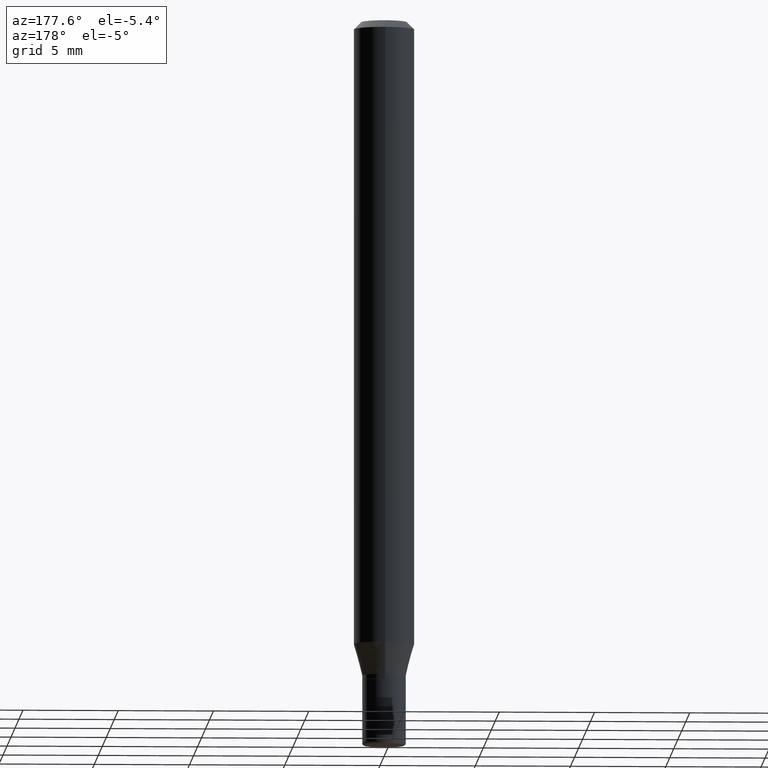
[diagram: clean part render]
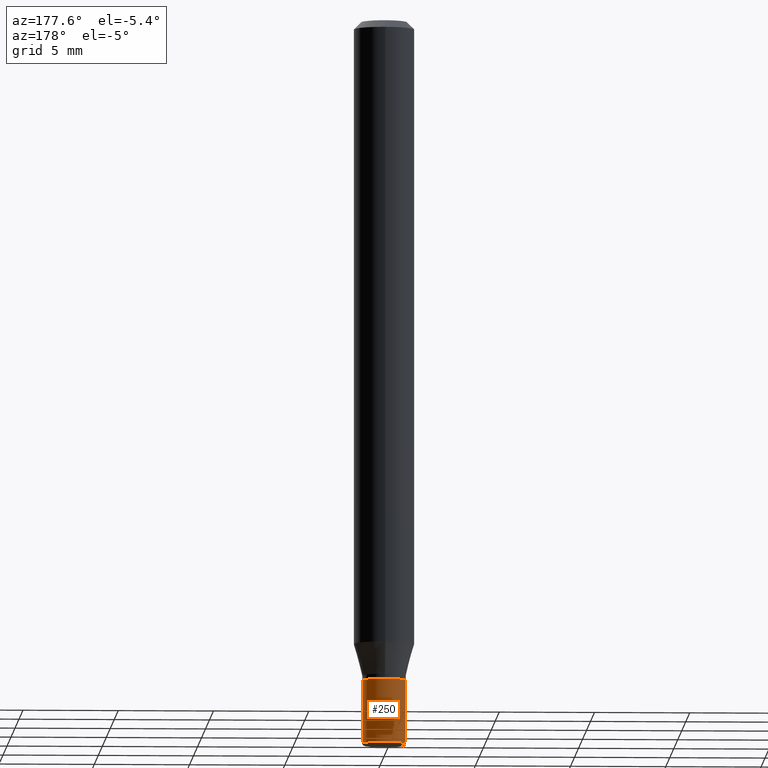
[diagram: same view with one face highlighted and labeled with its STEP entity id]
A machine part, auxiliary view. The second image highlights one B-rep face of the part: STEP entity #250.
In plain terms, the highlighted cylindrical surface (edge-blend (fillet) strip) has radius 1.143 mm, axis along (-0, 0, 1).
Its self-contained STEP definition (entity closure, byte-faithful):
#4 = CARTESIAN_POINT ( 'NONE',  ( 0.000000000000000000, 0.000000000000000000, 0.000000000000000000 ) ) ;
#11 = CARTESIAN_POINT ( 'NONE',  ( 3.338064920442711836E-29, -4.765872027520893280E-15, -1.364999999999999991 ) ) ;
#12 = ORIENTED_EDGE ( 'NONE', *, *, #70, .T. ) ;
#18 = EDGE_LOOP ( 'NONE', ( #233, #12, #308, #261 ) ) ;
#42 = CARTESIAN_POINT ( 'NONE',  ( -0.04499999999999999833, -4.673074083453654421E-15, -1.364999999999999991 ) ) ;
#52 = CARTESIAN_POINT ( 'NONE',  ( -0.04499999999999990119, -4.673074083453654421E-15, -1.495000000000000329 ) ) ;
#55 = FACE_OUTER_BOUND ( 'NONE', #18, .T. ) ;
#58 = DIRECTION ( 'NONE',  ( 1.000000000000000000, -6.982962677686269077E-15, 0.000000000000000000 ) ) ;
#70 = EDGE_CURVE ( 'NONE', #203, #467, #477, .T. ) ;
#84 = DIRECTION ( 'NONE',  ( 1.000000000000000000, -6.982962677686266711E-15, 4.876176775795934672E-29 ) ) ;
#91 = DIRECTION ( 'NONE',  ( -2.445468806185136877E-29, 3.491481338843145188E-15, 1.000000000000000000 ) ) ;
#120 = CARTESIAN_POINT ( 'NONE',  ( -0.04499999999999994976, 3.197442310920447267E-16, -2.213520790614704757E-30 ) ) ;
#123 = CARTESIAN_POINT ( 'NONE',  ( 3.655975865246779683E-29, -5.219764601570503930E-15, -1.495000000000000329 ) ) ;
#128 = VERTEX_POINT ( 'NONE', #482 ) ;
#131 = VERTEX_POINT ( 'NONE', #441 ) ;
#157 = EDGE_CURVE ( 'NONE', #128, #467, #214, .T. ) ;
#162 = VECTOR ( 'NONE', #432, 39.37007874015748143 ) ;
#198 = AXIS2_PLACEMENT_3D ( 'NONE', #11, #494, #58 ) ;
#201 = EDGE_CURVE ( 'NONE', #131, #203, #426, .T. ) ;
#203 = VERTEX_POINT ( 'NONE', #52 ) ;
#205 = CARTESIAN_POINT ( 'NONE',  ( 0.04499999999999994976, -3.142333204958816371E-16, 2.194279549108168164E-30 ) ) ;
#214 = CIRCLE ( 'NONE', #198, 0.04499999999999999833 ) ;
#216 = CYLINDRICAL_SURFACE ( 'NONE', #516, 0.04499999999999994976 ) ;
#233 = ORIENTED_EDGE ( 'NONE', *, *, #201, .T. ) ;
#250 = ADVANCED_FACE ( 'NONE', ( #55 ), #216, .T. ) ;
#261 = ORIENTED_EDGE ( 'NONE', *, *, #511, .F. ) ;
#275 = AXIS2_PLACEMENT_3D ( 'NONE', #123, #401, #485 ) ;
#276 = LINE ( 'NONE', #205, #162 ) ;
#308 = ORIENTED_EDGE ( 'NONE', *, *, #157, .F. ) ;
#401 = DIRECTION ( 'NONE',  ( -2.445468806185136597E-29, 3.491481338843145583E-15, 1.000000000000000000 ) ) ;
#426 = CIRCLE ( 'NONE', #275, 0.04499999999999990119 ) ;
#432 = DIRECTION ( 'NONE',  ( -2.445468806185136877E-29, 3.491481338843145188E-15, 1.000000000000000000 ) ) ;
#438 = DIRECTION ( 'NONE',  ( -2.445468806185136597E-29, 3.491481338843145583E-15, 1.000000000000000000 ) ) ;
#441 = CARTESIAN_POINT ( 'NONE',  ( 0.04499999999999990119, -5.533997922066385616E-15, -1.495000000000000329 ) ) ;
#467 = VERTEX_POINT ( 'NONE', #42 ) ;
#473 = VECTOR ( 'NONE', #91, 39.37007874015748143 ) ;
#477 = LINE ( 'NONE', #120, #473 ) ;
#482 = CARTESIAN_POINT ( 'NONE',  ( 0.04499999999999999833, -5.080105348016775756E-15, -1.364999999999999991 ) ) ;
#485 = DIRECTION ( 'NONE',  ( 1.000000000000000000, -6.982962677686261977E-15, 0.000000000000000000 ) ) ;
#494 = DIRECTION ( 'NONE',  ( -2.445468806185136597E-29, 3.491481338843145583E-15, 1.000000000000000000 ) ) ;
#511 = EDGE_CURVE ( 'NONE', #131, #128, #276, .T. ) ;
#516 = AXIS2_PLACEMENT_3D ( 'NONE', #4, #438, #84 ) ;